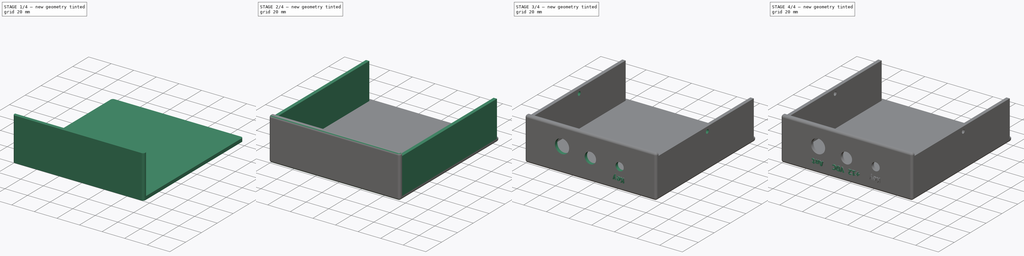
[diagram: build sequence overview — one tinted view per stage of 4, left to right]
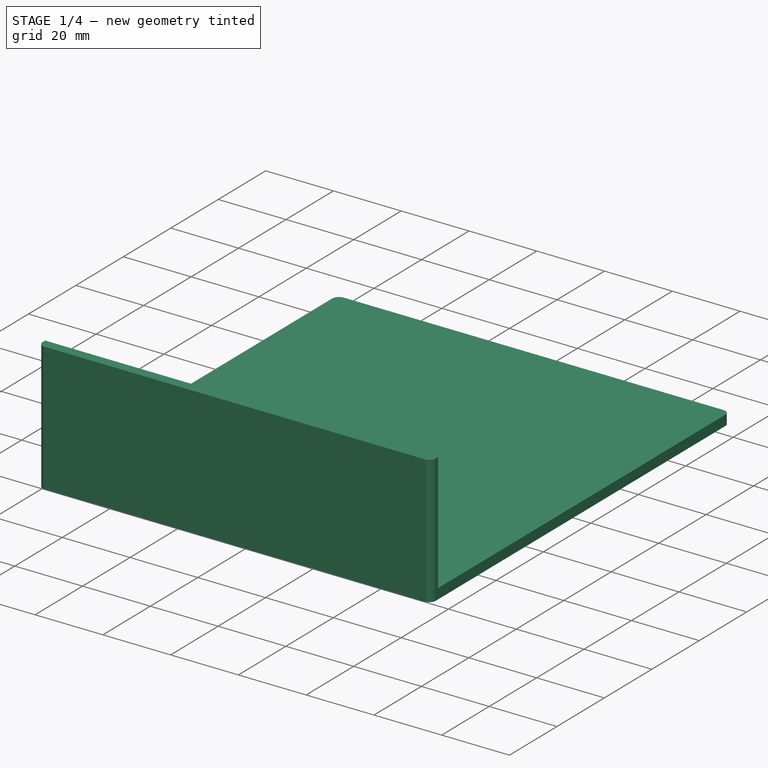
[diagram: stage 1 of 4 — iso view after this stage's code; geometry added in this stage tinted green]
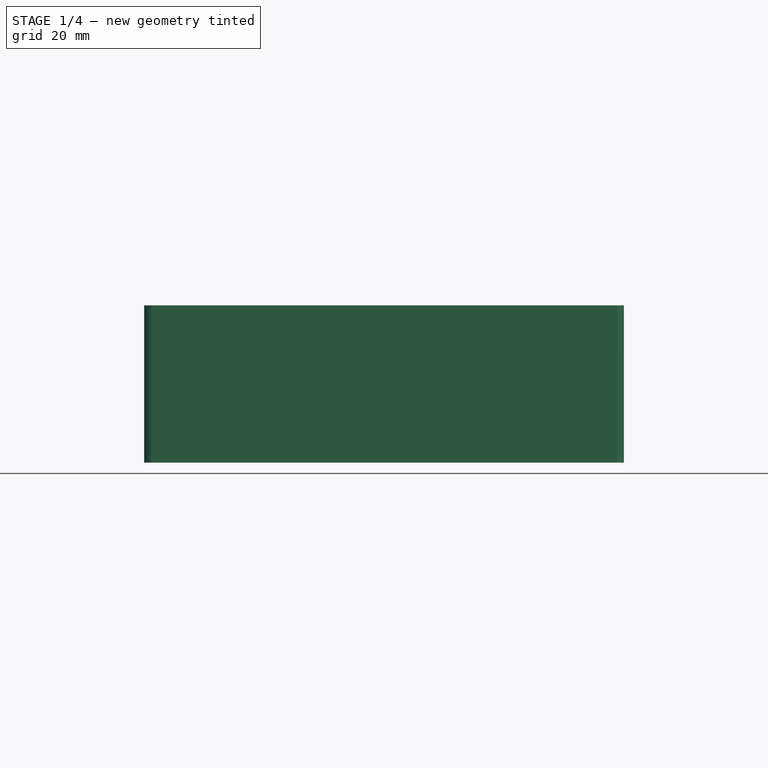
[diagram: stage 1 of 4 — front view after this stage's code; geometry added in this stage tinted green]
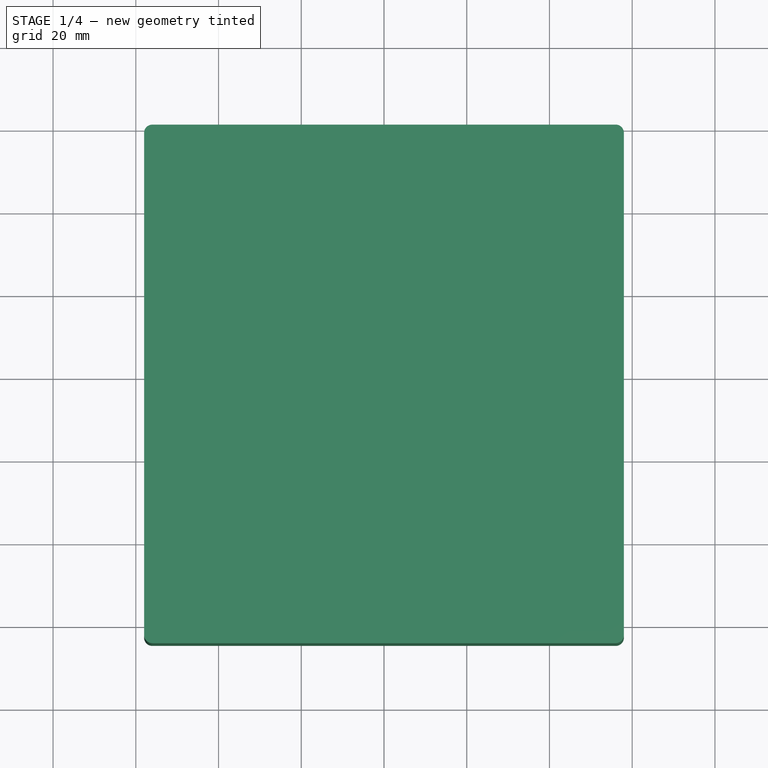
[diagram: stage 1 of 4 — top view after this stage's code; geometry added in this stage tinted green]
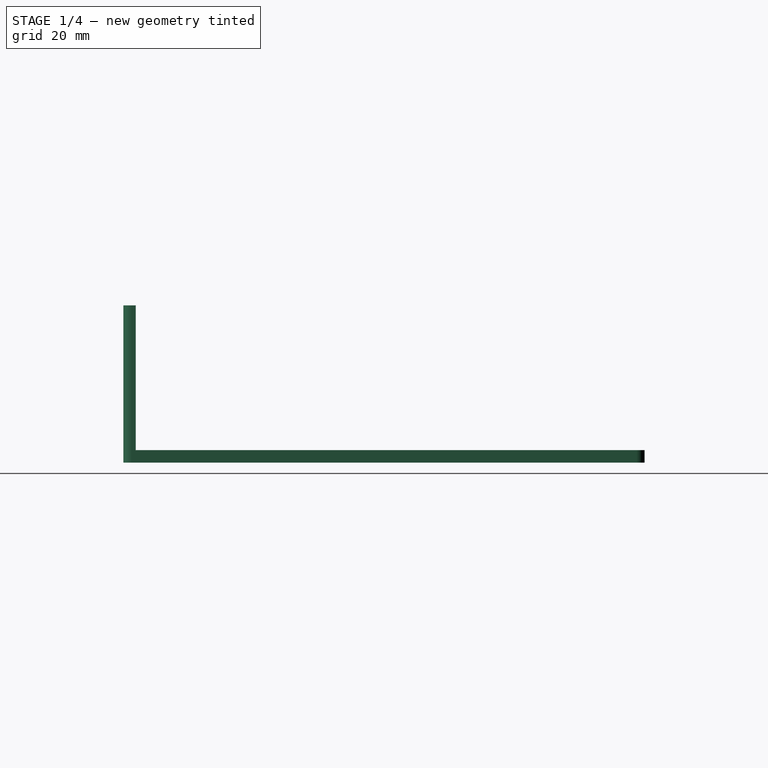
[diagram: stage 1 of 4 — right view after this stage's code; geometry added in this stage tinted green]
FCSTD DOCUMENT  (FreeCAD 0.22R36996 (Git))
Label: PartyLine80CaseTop
License: All rights reserved
LicenseURL: http://en.wikipedia.org/wiki/All_rights_reserved
objects: PartDesign::Pad×6, Sketcher::SketchObject×5, Part::Part2DObjectPython×3, PartDesign::Fillet×2, PartDesign::Pocket×2, PartDesign::SubShapeBinder×1, Spreadsheet::Sheet×1, PartDesign::Body×1
note: 30 computed .brp shape members not serialized (recipe doc carries the construction recipe); baked Part::Feature solids carry a one-line shape summary decoded from their .brp
EXTERNAL_REF file=../../FreeCADParametricEnclosure/FCParametricEnclosure.FCStd obj=Body

FEATURE [PartDesign::SubShapeBinder] Binder
  BindCopyOnChange = 0
  BindMode = 0
  ClaimChildren = false
  Context = -> Body001 [Binder.]
  Fuse = false
  MakeFace = true
  OffsetFill = false
  OffsetIntersection = false
  OffsetJoinType = 0
  OffsetOpenResult = false
  PartialLoad = false
  Relative = true
  Support = -> [<external ../../FreeCADParametricEnclosure/FCParametricEnclosure.FCStd>#Body[Fillet.]]
  _Version = 2
FEATURE [Sketcher::SketchObject] Sketch007
  AttachmentSupport = -> [XY_Plane001]
  FullyConstrained = true
  MapMode = 5
  expr: Constraints[17] = Spreadsheet.case_radius
  expr: Constraints[18] = Spreadsheet.case_length
  expr: Constraints[19] = Spreadsheet.case_width + Spreadsheet.wall_thickness
  expr: Constraints[22] = Spreadsheet.case_width / 2 + Spreadsheet.wall_thickness
  sketch-geometry (10):
    g0: ArcOfCircle CenterX=-56 CenterY=59.5 CenterZ=0 NormalX=0 NormalY=0 NormalZ=1 AngleXU=0 Radius=2 StartAngle=1.5708 EndAngle=3.14159
    g1: LineSegment StartX=-56 StartY=61.5 StartZ=0 EndX=56 EndY=61.5 EndZ=0
    g2: ArcOfCircle CenterX=56 CenterY=59.5 CenterZ=0 NormalX=0 NormalY=0 NormalZ=1 AngleXU=0 Radius=2 StartAngle=0 EndAngle=1.5708
    g3: LineSegment StartX=58 StartY=59.5 StartZ=0 EndX=58 EndY=-62.5 EndZ=0
    g4: ArcOfCircle CenterX=56 CenterY=-62.5 CenterZ=0 NormalX=0 NormalY=0 NormalZ=1 AngleXU=0 Radius=2 StartAngle=4.71239 EndAngle=6.28319
    g5: LineSegment StartX=56 StartY=-64.5 StartZ=0 EndX=-56 EndY=-64.5 EndZ=0
    g6: ArcOfCircle CenterX=-56 CenterY=-62.5 CenterZ=0 NormalX=0 NormalY=0 NormalZ=1 AngleXU=0 Radius=2 StartAngle=3.14159 EndAngle=4.71239
    g7: LineSegment StartX=-58 StartY=-62.5 StartZ=0 EndX=-58 EndY=59.5 EndZ=0
    g8: GeomPoint X=-58 Y=61.5 Z=0
    g9: GeomPoint X=58 Y=-64.5 Z=0
  constraints (23):
    c: Tangent(g0,g1) = 1.5708
    c: Tangent(g1,g2) = 1.5708
    c: Tangent(g2,g3) = 1.5708
    c: Tangent(g3,g4) = 1.5708
    c: Tangent(g4,g5) = 1.5708
    c: Tangent(g5,g6) = 1.5708
    c: Tangent(g6,g7) = 1.5708
    c: Tangent(g7,g0) = 1.5708
    c: Horizontal(g1)
    c: Horizontal(g5)
    c: Vertical(g3)
    c: Vertical(g7)
    c: Equal(g2,g4)
    c: PointOnObject(g8,g1)
    c: PointOnObject(g8,g7)
    c: PointOnObject(g9,g3)
    c: PointOnObject(g9,g5)
    c: Radius(g0) = 2
    c: DistanceX(g0,g2) = 116
    c: DistanceY(g4,g1) = 126
    c: Symmetric(g0,g2,g-2)
    c: Equal(g0,g6)
    c: Distance(g5,g-1) = 64.5
FEATURE [PartDesign::Pad] Pad005  label="Top Base"
  Direction = (0,0,1)
  Length = 3
  Length2 = 10
  Profile = -> Sketch007
  ReferenceAxis = -> Sketch007 [N_Axis]
  Suppressed = false
  Type = 0
  expr: Length = Spreadsheet.wall_thickness
FEATURE [Sketcher::SketchObject] Sketch008
  AttachmentSupport = -> [Pad005]
  ExternalGeometry = -> [Pad005]
  FullyConstrained = true
  MapMode = 5
  Placement = pos=(0,0,3) rot=(0,0,1;0rad)
  expr: Constraints[14] = Spreadsheet.wall_thickness
  sketch-geometry (6):
    g0: LineSegment StartX=-58 StartY=-61.5 StartZ=0 EndX=58 EndY=-61.5 EndZ=0
    g1: LineSegment StartX=58 StartY=-61.5 StartZ=0 EndX=58 EndY=-62.5 EndZ=0
    g2: LineSegment StartX=56 StartY=-64.5 StartZ=0 EndX=-56 EndY=-64.5 EndZ=0
    g3: LineSegment StartX=-58 StartY=-62.5 StartZ=0 EndX=-58 EndY=-61.5 EndZ=0
    g4: ArcOfCircle CenterX=-56 CenterY=-62.5 CenterZ=0 NormalX=0 NormalY=0 NormalZ=1 AngleXU=0 Radius=2 StartAngle=3.14159 EndAngle=4.71239
    g5: ArcOfCircle CenterX=56 CenterY=-62.5 CenterZ=0 NormalX=0 NormalY=0 NormalZ=1 AngleXU=0 Radius=2 StartAngle=4.71239 EndAngle=6.28319
  constraints (15):
    c: Coincident(g0,g1)
    c: Coincident(g3,g0)
    c: Horizontal(g0)
    c: Horizontal(g2)
    c: Vertical(g1)
    c: Vertical(g3)
    c: Tangent(g3,g4) = 1.5708
    c: Tangent(g2,g4) = 1.5708
    c: Tangent(g1,g5) = 1.5708
    c: Tangent(g2,g5) = 1.5708
    c: Equal(g5,g4)
    c: Coincident(g2,g-6)
    c: PointOnObject(g0,g-5)
    c: PointOnObject(g0,g-7)
    c: Distance(g2,g0) = 3
FEATURE [PartDesign::Pad] Pad006  label="Rear Panel"
  BaseFeature = -> Pad005
  Direction = (0,0,1)
  Length = 35
  Length2 = 10
  Profile = -> Sketch008
  ReferenceAxis = -> Sketch008 [N_Axis]
  Suppressed = false
  Type = 0
  expr: Length = Spreadsheet.case_height
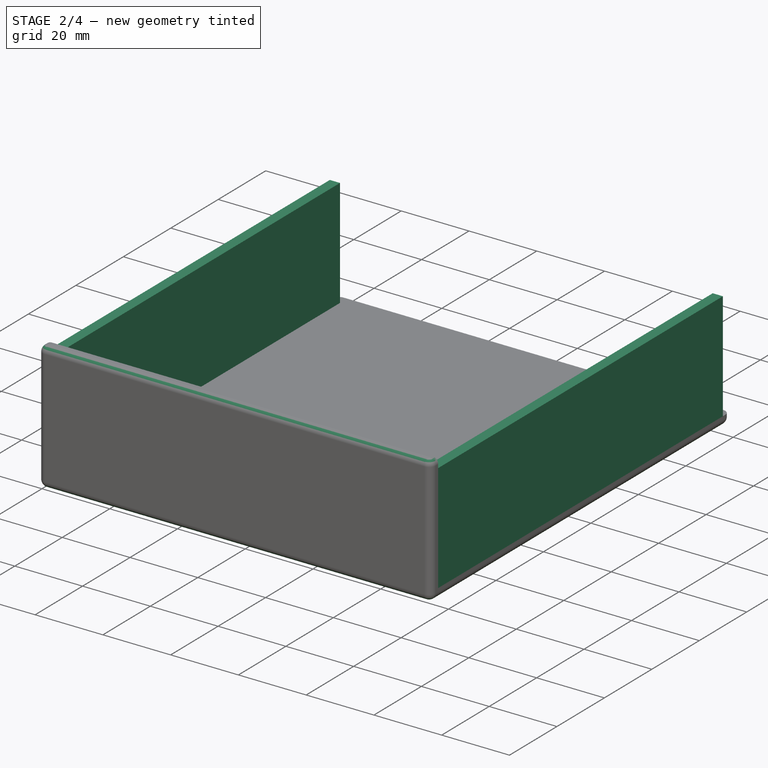
[diagram: stage 2 of 4 — iso view after this stage's code; geometry added in this stage tinted green]
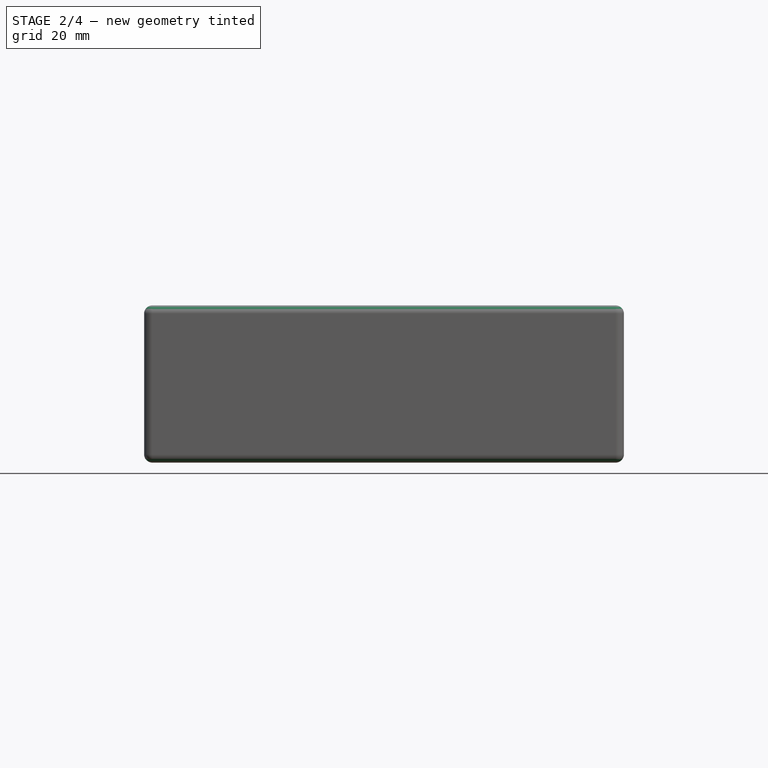
[diagram: stage 2 of 4 — front view after this stage's code; geometry added in this stage tinted green]
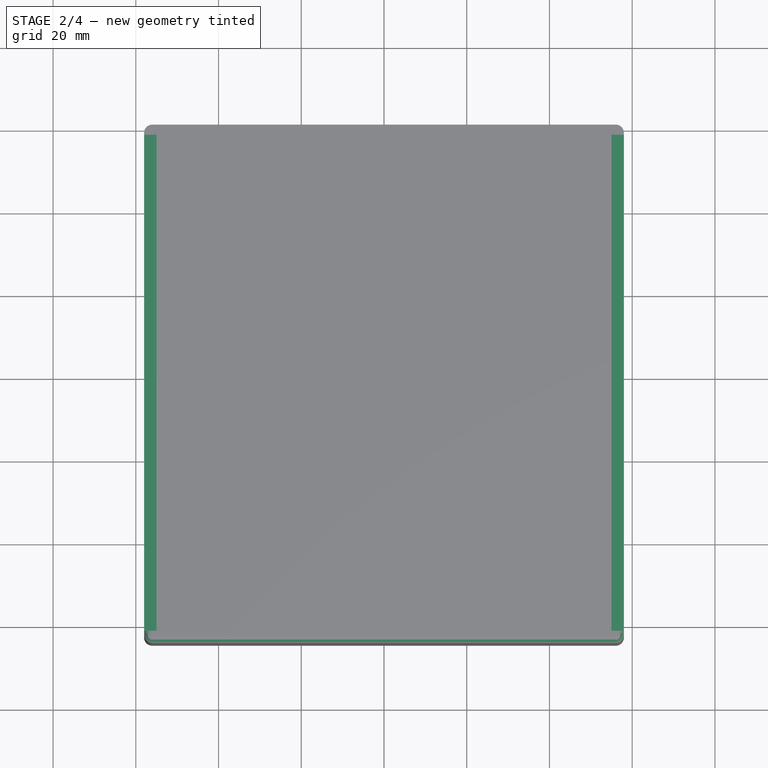
[diagram: stage 2 of 4 — top view after this stage's code; geometry added in this stage tinted green]
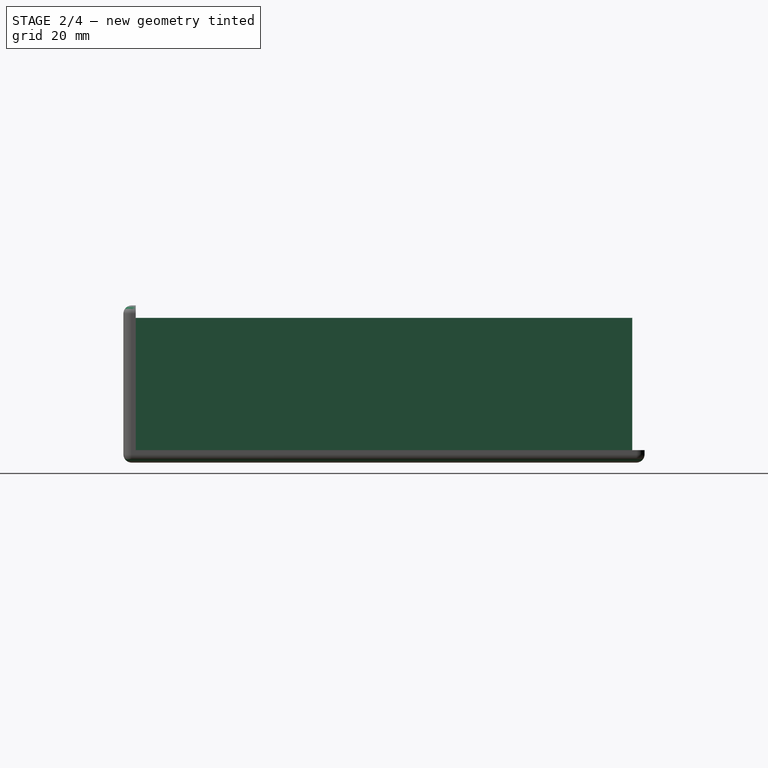
[diagram: stage 2 of 4 — right view after this stage's code; geometry added in this stage tinted green]
FEATURE [Sketcher::SketchObject] Sketch009
  AttachmentSupport = -> [Pad006]
  ExternalGeometry = -> [Pad006]
  FullyConstrained = true
  MapMode = 5
  Placement = pos=(0,0,3) rot=(0,0,1;0rad)
  expr: Constraints[16] = Spreadsheet.wall_thickness
  expr: Constraints[17] = Spreadsheet.wall_thickness
  expr: Constraints[18] = Spreadsheet.board_width
  expr: Constraints[19] = Spreadsheet.board_width
  sketch-geometry (8):
    g0: LineSegment StartX=55 StartY=58.5 StartZ=0 EndX=58 EndY=58.5 EndZ=0
    g1: LineSegment StartX=58 StartY=58.5 StartZ=0 EndX=58 EndY=-61.5 EndZ=0
    g2: LineSegment StartX=58 StartY=-61.5 StartZ=0 EndX=55 EndY=-61.5 EndZ=0
    g3: LineSegment StartX=55 StartY=-61.5 StartZ=0 EndX=55 EndY=58.5 EndZ=0
    g4: LineSegment StartX=-58 StartY=58.5 StartZ=0 EndX=-55 EndY=58.5 EndZ=0
    g5: LineSegment StartX=-55 StartY=58.5 StartZ=0 EndX=-55 EndY=-61.5 EndZ=0
    g6: LineSegment StartX=-55 StartY=-61.5 StartZ=0 EndX=-58 EndY=-61.5 EndZ=0
    g7: LineSegment StartX=-58 StartY=-61.5 StartZ=0 EndX=-58 EndY=58.5 EndZ=0
  constraints (22):
    c: Coincident(g0,g1)
    c: Coincident(g1,g2)
    c: Coincident(g2,g3)
    c: Coincident(g3,g0)
    c: Horizontal(g0)
    c: Horizontal(g2)
    c: Vertical(g1)
    c: Vertical(g3)
    c: Coincident(g4,g5)
    c: Coincident(g5,g6)
    c: Coincident(g6,g7)
    c: Coincident(g7,g4)
    c: Horizontal(g4)
    c: Horizontal(g6)
    c: Vertical(g5)
    c: Vertical(g7)
    c: DistanceX(g6,g5) = 3
    c: DistanceX(g2,g1) = 3
    c: DistanceY(g2,g0) = 120
    c: DistanceY(g5,g4) = 120
    c: Coincident(g1,g-3)
    c: Coincident(g6,g-4)
FEATURE [PartDesign::Pad] Pad007  label="Side Walls"
  BaseFeature = -> Pad006
  Direction = (0,0,1)
  Length = 32
  Length2 = 10
  Profile = -> Sketch009
  ReferenceAxis = -> Sketch009 [N_Axis]
  Suppressed = false
  Type = 0
  expr: Length = Spreadsheet.case_height - Spreadsheet.wall_thickness
FEATURE [PartDesign::Fillet] Fillet001
  Base = -> Pad007 [Face4]
  BaseFeature = -> Pad007
  Radius = 2
  SupportTransform = false
  Suppressed = false
  UseAllEdges = false
  expr: Radius = Spreadsheet.case_fillet_radius
FEATURE [PartDesign::Fillet] Fillet002
  Base = -> Fillet001 [Edge68,Edge69,Edge70,Edge71,Edge53]
  BaseFeature = -> Fillet001
  Radius = 2
  SupportTransform = false
  Suppressed = false
  UseAllEdges = false
  expr: Radius = Spreadsheet.case_fillet_radius
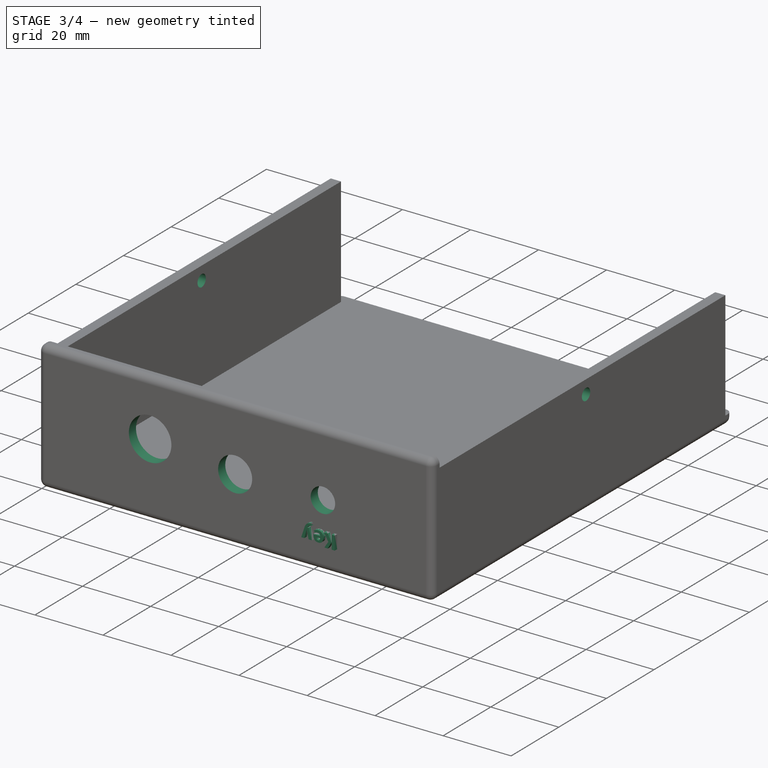
[diagram: stage 3 of 4 — iso view after this stage's code; geometry added in this stage tinted green]
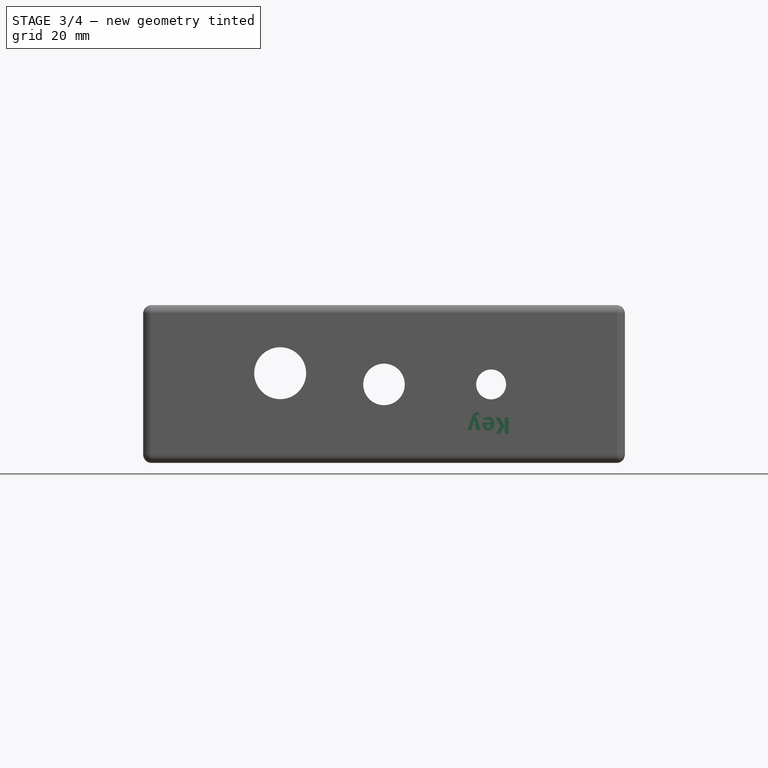
[diagram: stage 3 of 4 — front view after this stage's code; geometry added in this stage tinted green]
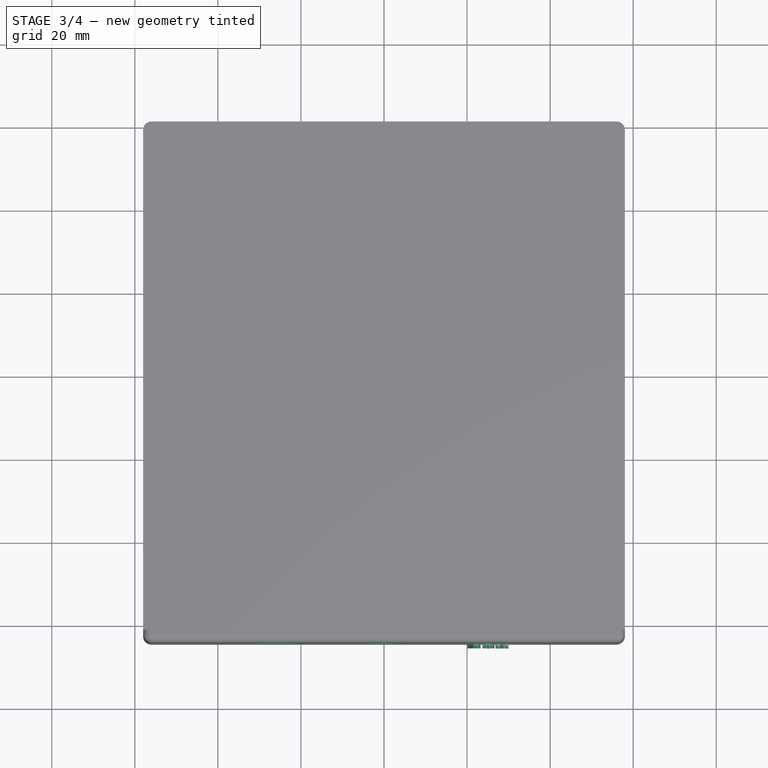
[diagram: stage 3 of 4 — top view after this stage's code; geometry added in this stage tinted green]
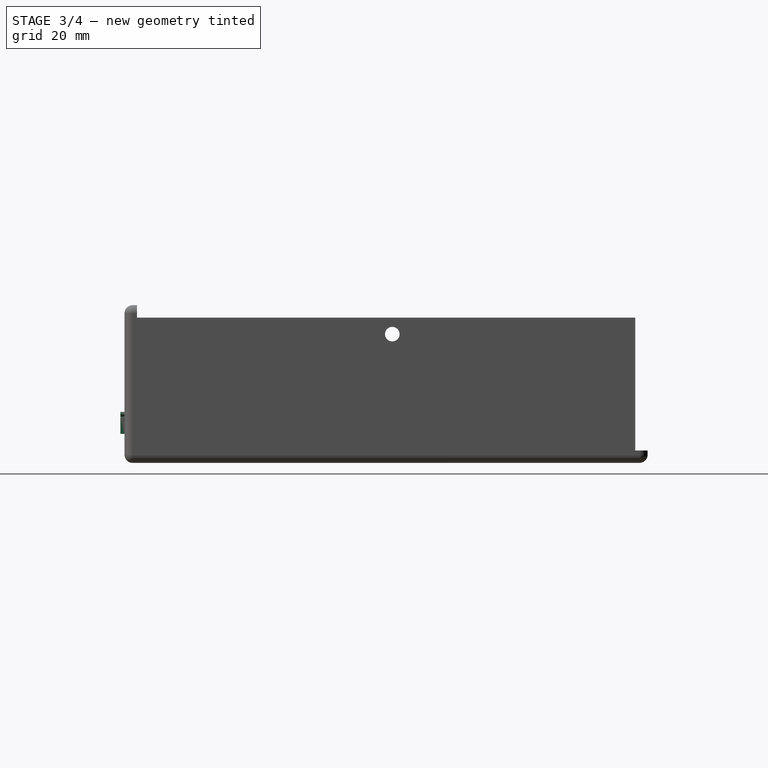
[diagram: stage 3 of 4 — right view after this stage's code; geometry added in this stage tinted green]
FEATURE [Sketcher::SketchObject] Sketch010
  AttachmentSupport = -> [Fillet002]
  ExternalGeometry = -> [Binder]
  FullyConstrained = true
  MapMode = 5
  Placement = pos=(-58,0,0) rot=(0.57735,-0.57735,-0.57735;2.0944rad)
  expr: Constraints[1] = Spreadsheet.case_clearance_hole
  expr: Constraints[2] = Spreadsheet.case_lip_height / 2
  sketch-geometry (1):
    g0: Circle CenterX=0 CenterY=31 CenterZ=0 NormalX=0 NormalY=0 NormalZ=1 AngleXU=0 Radius=1.75
  constraints (3):
    c: PointOnObject(g0,g-2)
    c: Diameter(g0) = 3.5
    c: Distance(g0,g-3) = 4
FEATURE [PartDesign::Pocket] Pocket001
  BaseFeature = -> Fillet002
  Direction = (1,0,0)
  Length = 5
  Length2 = 5
  Profile = -> Sketch010
  ReferenceAxis = -> Sketch010 [N_Axis]
  Suppressed = false
  Type = 1
FEATURE [Spreadsheet::Sheet] Spreadsheet
  cells = A1='board_length; B1(board_length)=100; A2='board_width; B2(board_width)=120; A3='case_height; B3(case_height)=35; A4='wall_thickness; B4(wall_thickness)=3; A5='board_mount_inset; B5(board_mount_inset)=5; A6='case_radius; B6(case_radius)=2; A7='mount_hole_diameter; B7(mount_hole_diameter)=4; A8='mount_hole_depth; B8(mount_hole_depth)=5; A9='case_hole_diameter; B9(case_hole_diameter)=4; A10='case_hole_depth; B10(case_hole_depth)=5; A11='mount_stud_height; B11(mount_stud_height)=8; A12='case_clearance_hole; B12(case_clearance_hole)=3.5; A14='case_length; B14(case_length)==board_length + (wall_thickness + case_lip_thickness) * 2; A15='case_width; B15(case_width)==board_width + wall_thickness; A16='case_lip_height; B16(case_lip_height)==case_hole_diameter + 4; A17='case_lip_thickness; B17(case_lip_thickness)==case_hole_depth; A18='mount_stud_diameter; B18(mount_stud_diameter)==mount_hole_diameter + 3; A19='case_fillet_radius; B19(case_fillet_radius)==case_radius
FEATURE [Sketcher::SketchObject] Sketch
  AttachmentSupport = -> [Pocket001]
  ExternalGeometry = -> [Pocket001]
  FullyConstrained = true
  MapMode = 5
  Placement = pos=(0,-64.5,0) rot=(1,0,0;1.5708rad)
  sketch-geometry (3):
    g0: Circle CenterX=25.8 CenterY=18.9 CenterZ=0 NormalX=0 NormalY=0 NormalZ=1 AngleXU=0 Radius=3.6
    g1: Circle CenterX=0 CenterY=18.9 CenterZ=0 NormalX=0 NormalY=0 NormalZ=1 AngleXU=0 Radius=5
    g2: Circle CenterX=-25 CenterY=21.6 CenterZ=0 NormalX=0 NormalY=0 NormalZ=1 AngleXU=0 Radius=6.25
  constraints (9):
    c: Diameter(g2) = 12.5
    c: Diameter(g1) = 10
    c: Diameter(g0) = 7.2
    c: Distance(g2,g-3) = 16.4
    c: Distance(g2,g-2) = 25
    c: Distance(g1,g-3) = 19.1
    c: Distance(g0,g-3) = 19.1
    c: DistanceX(g-1,g0) = 25.8
    c: Tangent(g1,g-2) = -1.5708
FEATURE [PartDesign::Pocket] Pocket
  BaseFeature = -> Pocket001
  Direction = (0,1,-2e-16)
  Length = 5
  Length2 = 5
  Profile = -> Sketch
  ReferenceAxis = -> Sketch [N_Axis]
  Suppressed = false
  Type = 1
FEATURE [Part::Part2DObjectPython] ShapeString  # Draft 2D object (typed FeaturePython)
  FontFile = <path>
  Fuse = false
  Justification = 6
  JustificationReference = 0
  KeepLeftMargin = false
  MakeFace = true
  ObliqueAngle = 0
  Placement = pos=(30,-64.5,11) rot=(0,-0.707107,0.707107;3.14159rad)
  ScaleToSize = true
  Size = 4
  String = Key
  Tracking = 0
FEATURE [Part::Part2DObjectPython] ShapeString001  # Draft 2D object (typed FeaturePython)
  FontFile = <path>
  Fuse = false
  Justification = 6
  JustificationReference = 0
  KeepLeftMargin = false
  MakeFace = true
  ObliqueAngle = 0
  Placement = pos=(12,-64.5,11) rot=(0,-0.707107,0.707107;3.14159rad)
  ScaleToSize = true
  Size = 4
  String = +12 VDC
  Tracking = 0
FEATURE [Part::Part2DObjectPython] ShapeString002  # Draft 2D object (typed FeaturePython)
  FontFile = <path>
  Fuse = false
  Justification = 6
  JustificationReference = 0
  KeepLeftMargin = false
  MakeFace = true
  ObliqueAngle = 0
  Placement = pos=(-20,-64.5,11) rot=(0,-0.707107,0.707107;3.14159rad)
  ScaleToSize = true
  Size = 4
  String = Ant
  Tracking = 0
FEATURE [PartDesign::Pad] Pad
  BaseFeature = -> Pocket
  Direction = (0,-1,-4e-16)
  Length = 1
  Length2 = 10
  Profile = -> ShapeString
  ReferenceAxis = -> ShapeString [N_Axis]
  Suppressed = false
  Type = 0
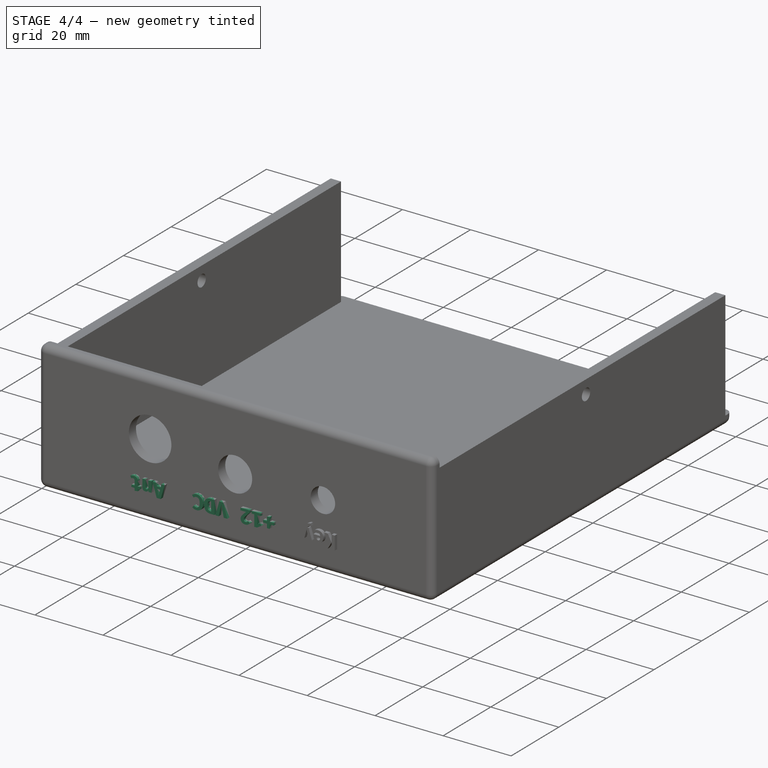
[diagram: stage 4 of 4 — iso view after this stage's code; geometry added in this stage tinted green]
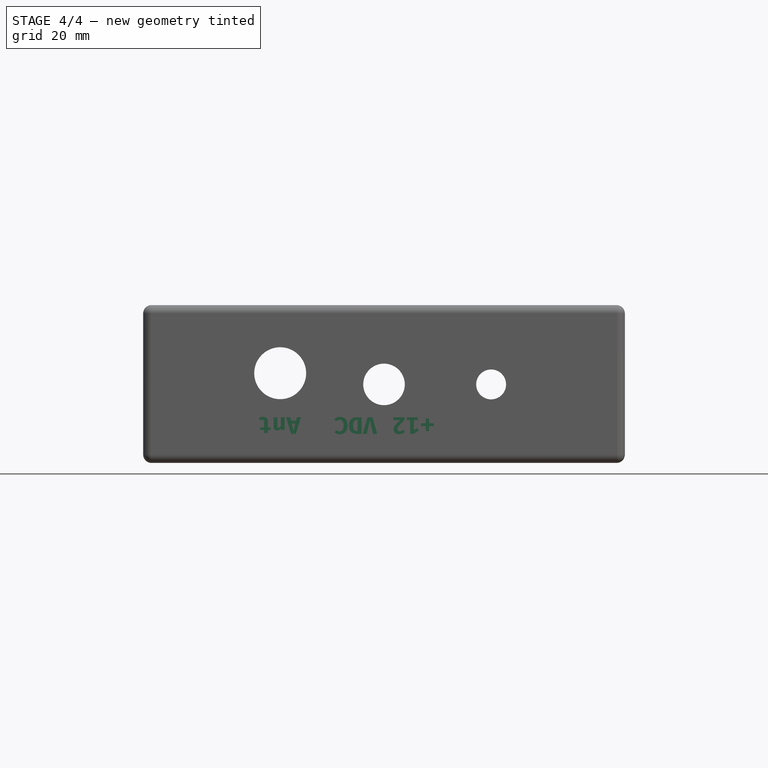
[diagram: stage 4 of 4 — front view after this stage's code; geometry added in this stage tinted green]
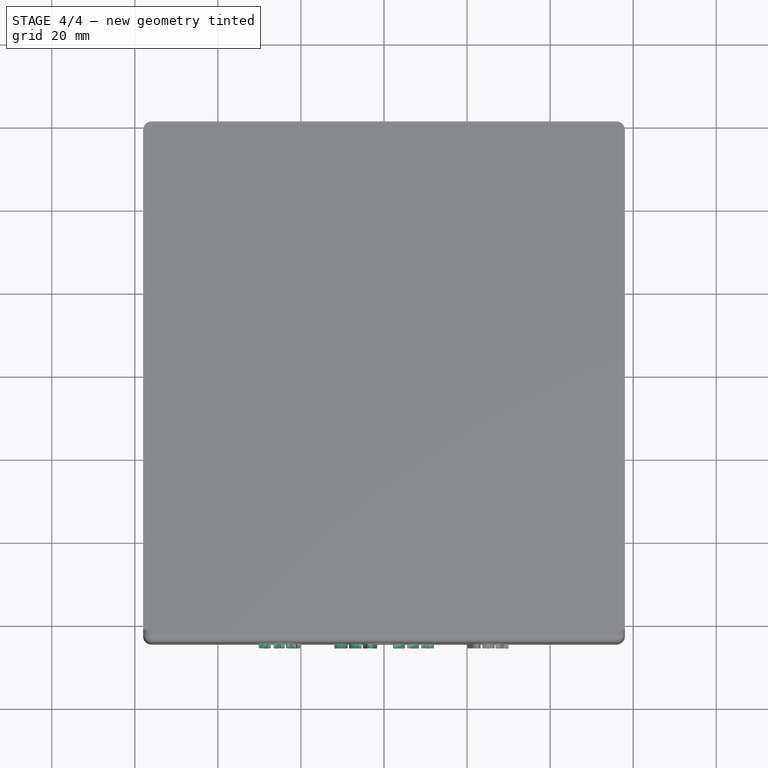
[diagram: stage 4 of 4 — top view after this stage's code; geometry added in this stage tinted green]
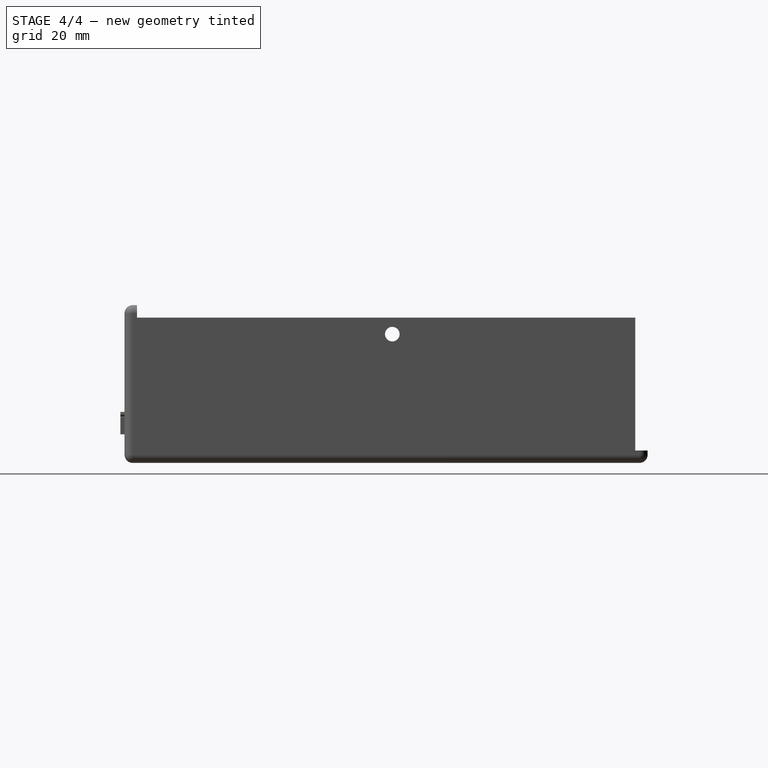
[diagram: stage 4 of 4 — right view after this stage's code; geometry added in this stage tinted green]
FEATURE [PartDesign::Pad] Pad008
  BaseFeature = -> Pad
  Direction = (0,-1,-4e-16)
  Length = 1
  Length2 = 10
  Profile = -> ShapeString001
  ReferenceAxis = -> ShapeString001 [N_Axis]
  Suppressed = false
  Type = 0
FEATURE [PartDesign::Pad] Pad009
  BaseFeature = -> Pad008
  Direction = (0,-1,-4e-16)
  Length = 1
  Length2 = 10
  Profile = -> ShapeString002
  ReferenceAxis = -> ShapeString002 [N_Axis]
  Suppressed = false
  Type = 0
FEATURE [PartDesign::Body] Body001  label="Case Top"
  Group = -> [Sketch007,Pad005,Sketch008,Pad006,Sketch009,Pad007,Fillet001,Binder,Fillet002,Sketch010,Pocket001,Sketch,Pocket,ShapeString,ShapeString001,ShapeString002,Pad,Pad008,Pad009]
  Origin = -> Origin001
  Placement = pos=(0,0,38) rot=(0,1,0;3.14159rad)
  Tip = -> Pad009
  expr: .Placement.Base.z = Spreadsheet.case_height + Spreadsheet.wall_thickness
note: 3 file-system paths scrubbed to <path> (originals preserved in the JSON sidecar)
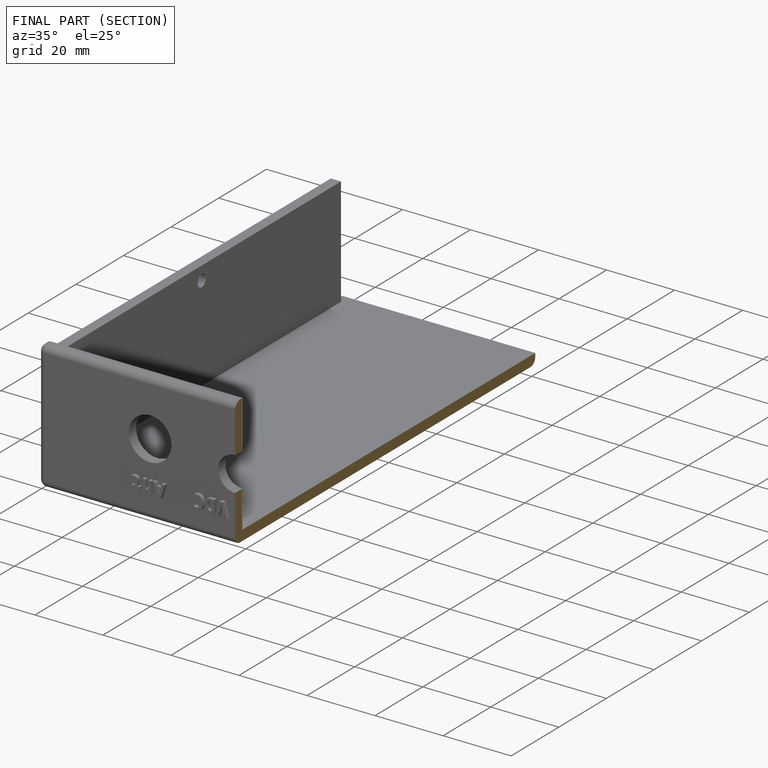
[diagram: finished part — half-section view (interior)]
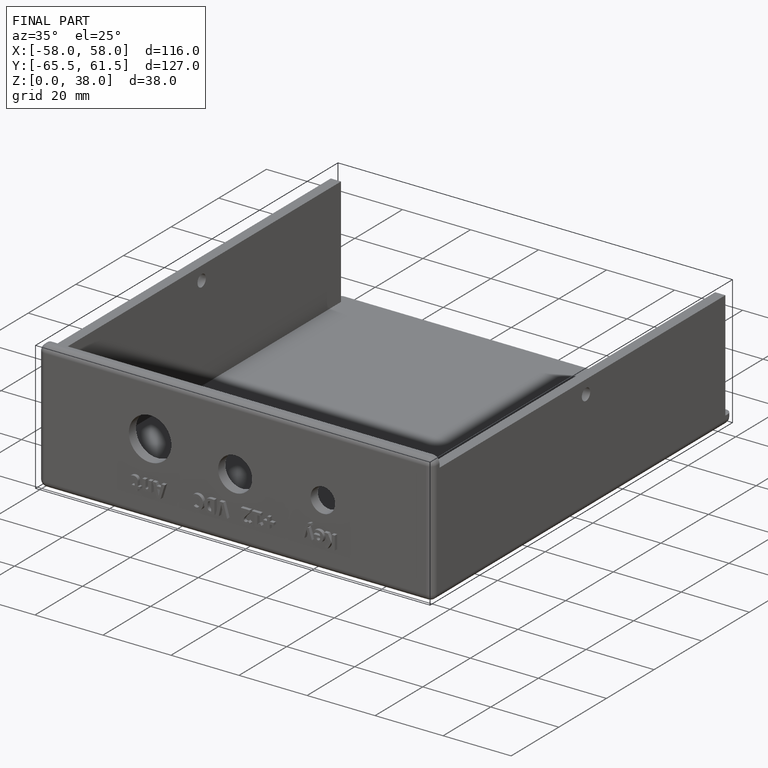
[diagram: finished part — iso view with bounding-box wireframe]
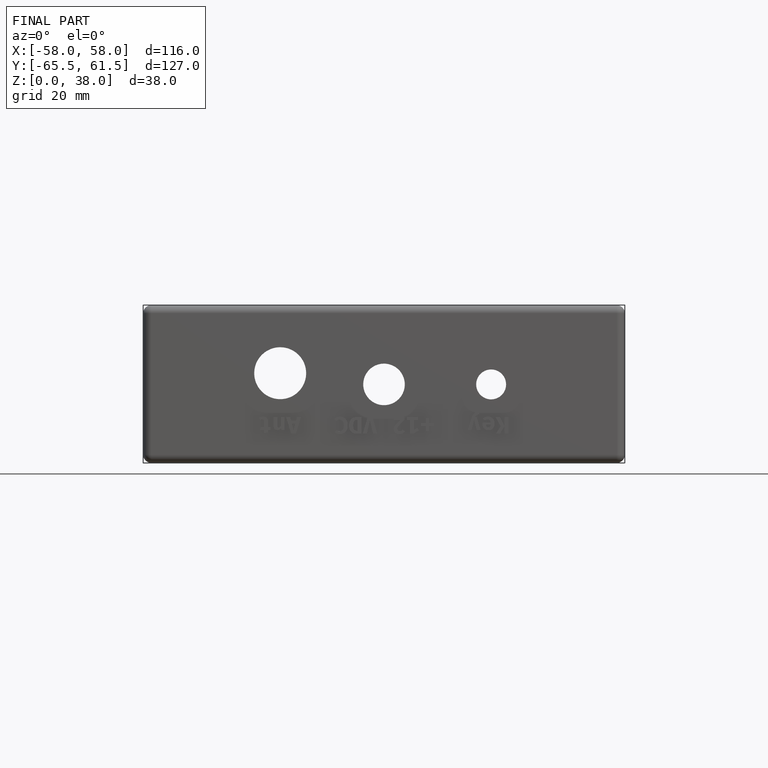
[diagram: finished part — front view with bounding-box wireframe]
